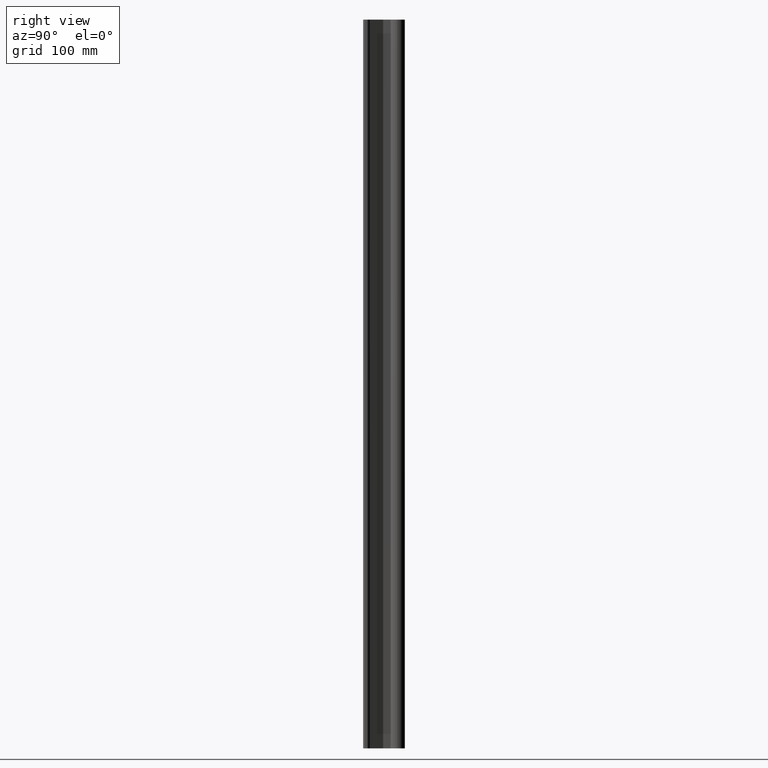
[diagram: clean part render]
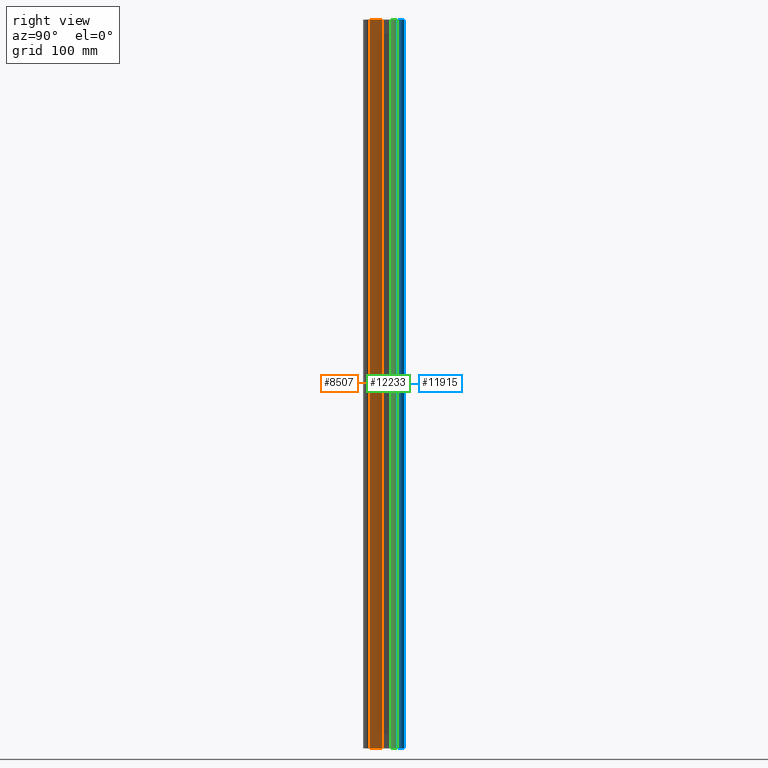
[diagram: same view with three faces highlighted in distinct colors, each labeled with its STEP entity id]
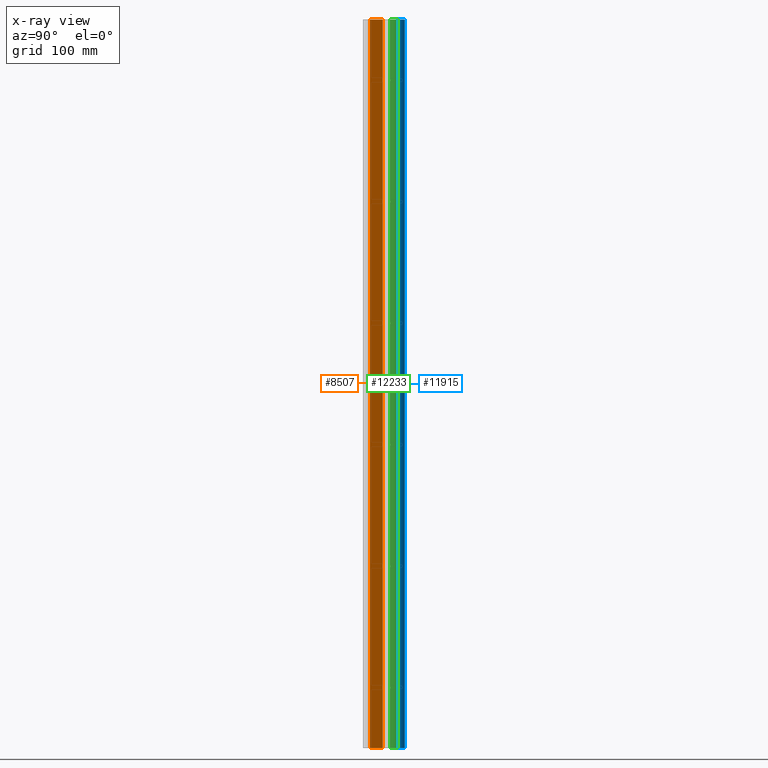
[diagram: x-ray of the same camera — body ghosted, the three highlighted faces saturated]
A machine part, right view with three faces highlighted in distinct colors.
The next image is the same camera in x-ray (body ghosted, the three faces saturated) — at least one of them is partly hidden behind the body in this view.
Their STEP definitions:

[orange] entity #8507 — the highlighted planar face has unit normal (0.9063, 0.4226, 0).
#706 = ORIENTED_EDGE ( 'NONE', *, *, #6439, .F. ) ;
#1805 = VECTOR ( 'NONE', #11694, 39.37007874015748143 ) ;
#2032 = PLANE ( 'NONE',  #12254 ) ;
#2169 = EDGE_CURVE ( 'NONE', #7090, #12223, #11476, .T. ) ;
#2794 = EDGE_LOOP ( 'NONE', ( #706, #12096, #3028, #7269 ) ) ;
#3028 = ORIENTED_EDGE ( 'NONE', *, *, #11531, .F. ) ;
#3038 = DIRECTION ( 'NONE',  ( -0.4226182616904480827, 0.9063077870600825259, 0.000000000000000000 ) ) ;
#3105 = DIRECTION ( 'NONE',  ( 0.9063077870600826369, 0.4226182616904481382, -0.000000000000000000 ) ) ;
#3227 = CARTESIAN_POINT ( 'NONE',  ( 0.1358557633000001819, 0.6467337975999984945, -25.75252057657289129 ) ) ;
#4116 = CARTESIAN_POINT ( 'NONE',  ( 0.1358557633000001819, 0.6467337975999984945, 0.000000000000000000 ) ) ;
#4488 = VERTEX_POINT ( 'NONE', #4116 ) ;
#5328 = VECTOR ( 'NONE', #7254, 39.37007874015748143 ) ;
#5426 = CARTESIAN_POINT ( 'NONE',  ( 0.3338457484000003084, 0.2221429043000001380, -24.00000000000000355 ) ) ;
#5464 = CARTESIAN_POINT ( 'NONE',  ( 0.3338457484000003084, 0.2221429043000001935, -24.00000000000000355 ) ) ;
#5851 = VERTEX_POINT ( 'NONE', #9325 ) ;
#6439 = EDGE_CURVE ( 'NONE', #5851, #7090, #12686, .T. ) ;
#7090 = VERTEX_POINT ( 'NONE', #5464 ) ;
#7254 = DIRECTION ( 'NONE',  ( 0.000000000000000000, 0.000000000000000000, 1.000000000000000000 ) ) ;
#7269 = ORIENTED_EDGE ( 'NONE', *, *, #2169, .F. ) ;
#7888 = CARTESIAN_POINT ( 'NONE',  ( 0.3338457484000003084, 0.2221429043000001380, 0.000000000000000000 ) ) ;
#7965 = LINE ( 'NONE', #7888, #12764 ) ;
#8507 = ADVANCED_FACE ( 'NONE', ( #12270 ), #2032, .T. ) ;
#9325 = CARTESIAN_POINT ( 'NONE',  ( 0.1358557633000001819, 0.6467337975999984945, -24.00000000000000355 ) ) ;
#10415 = VECTOR ( 'NONE', #10503, 39.37007874015748143 ) ;
#10503 = DIRECTION ( 'NONE',  ( 0.000000000000000000, 0.000000000000000000, 1.000000000000000000 ) ) ;
#10956 = DIRECTION ( 'NONE',  ( -0.4226182616904481937, 0.9063077870600825259, 0.000000000000000000 ) ) ;
#11323 = CARTESIAN_POINT ( 'NONE',  ( 0.3338457484000003084, 0.2221429043000001380, -25.75252057657289129 ) ) ;
#11423 = EDGE_CURVE ( 'NONE', #5851, #4488, #11642, .T. ) ;
#11476 = LINE ( 'NONE', #13425, #5328 ) ;
#11531 = EDGE_CURVE ( 'NONE', #12223, #4488, #7965, .T. ) ;
#11642 = LINE ( 'NONE', #3227, #10415 ) ;
#11694 = DIRECTION ( 'NONE',  ( 0.4226182616904480827, -0.9063077870600825259, 0.000000000000000000 ) ) ;
#12096 = ORIENTED_EDGE ( 'NONE', *, *, #11423, .T. ) ;
#12223 = VERTEX_POINT ( 'NONE', #12667 ) ;
#12254 = AXIS2_PLACEMENT_3D ( 'NONE', #11323, #3105, #3038 ) ;
#12270 = FACE_OUTER_BOUND ( 'NONE', #2794, .T. ) ;
#12667 = CARTESIAN_POINT ( 'NONE',  ( 0.3338457484000003084, 0.2221429043000001935, 0.000000000000000000 ) ) ;
#12686 = LINE ( 'NONE', #5426, #1805 ) ;
#12764 = VECTOR ( 'NONE', #10956, 39.37007874015748854 ) ;
#13425 = CARTESIAN_POINT ( 'NONE',  ( 0.3338457484000003084, 0.2221429043000001935, -25.75252057657289129 ) ) ;

[blue] entity #11915 — the highlighted cylindrical surface (edge-blend (fillet) strip) has radius 6.35 mm, axis along (0, 0, 1).
#2001 = DIRECTION ( 'NONE',  ( 1.000000000000000000, 0.000000000000000000, 0.000000000000000000 ) ) ;
#2096 = EDGE_LOOP ( 'NONE', ( #8479, #11686, #4143, #3760 ) ) ;
#2612 = CARTESIAN_POINT ( 'NONE',  ( 0.000000000000000000, 1.125000000000000222, 0.000000000000000000 ) ) ;
#2858 = CARTESIAN_POINT ( 'NONE',  ( -0.2500000000000001110, 1.125000000000000222, -23.99999999999999645 ) ) ;
#3013 = CARTESIAN_POINT ( 'NONE',  ( 0.000000000000000000, 1.125000000000000222, -23.99999999999999645 ) ) ;
#3152 = DIRECTION ( 'NONE',  ( 1.000000000000000000, 0.000000000000000000, 0.000000000000000000 ) ) ;
#3367 = LINE ( 'NONE', #8654, #9490 ) ;
#3390 = VERTEX_POINT ( 'NONE', #2858 ) ;
#3659 = CARTESIAN_POINT ( 'NONE',  ( -0.2500000000000001110, 1.125000000000000222, 0.000000000000000000 ) ) ;
#3760 = ORIENTED_EDGE ( 'NONE', *, *, #5922, .F. ) ;
#4143 = ORIENTED_EDGE ( 'NONE', *, *, #7040, .F. ) ;
#4481 = VERTEX_POINT ( 'NONE', #3659 ) ;
#4662 = DIRECTION ( 'NONE',  ( 1.000000000000000000, 0.000000000000000000, 0.000000000000000000 ) ) ;
#4965 = FACE_OUTER_BOUND ( 'NONE', #2096, .T. ) ;
#5538 = DIRECTION ( 'NONE',  ( 0.000000000000000000, 0.000000000000000000, 1.000000000000000000 ) ) ;
#5922 = EDGE_CURVE ( 'NONE', #10042, #12636, #6999, .T. ) ;
#6259 = CIRCLE ( 'NONE', #11713, 0.2500000000000001110 ) ;
#6293 = DIRECTION ( 'NONE',  ( 0.000000000000000000, 0.000000000000000000, 1.000000000000000000 ) ) ;
#6528 = DIRECTION ( 'NONE',  ( 0.000000000000000000, 0.000000000000000000, 1.000000000000000000 ) ) ;
#6999 = LINE ( 'NONE', #11153, #9640 ) ;
#7040 = EDGE_CURVE ( 'NONE', #12636, #4481, #8088, .T. ) ;
#7154 = CARTESIAN_POINT ( 'NONE',  ( 0.2500000000000001110, 1.125000000000000222, 0.000000000000000000 ) ) ;
#7196 = CYLINDRICAL_SURFACE ( 'NONE', #11077, 0.2500000000000001110 ) ;
#8088 = CIRCLE ( 'NONE', #8738, 0.2500000000000001110 ) ;
#8479 = ORIENTED_EDGE ( 'NONE', *, *, #11738, .T. ) ;
#8654 = CARTESIAN_POINT ( 'NONE',  ( -0.2500000000000001110, 1.125000000000000222, -23.99999999999999645 ) ) ;
#8738 = AXIS2_PLACEMENT_3D ( 'NONE', #2612, #5538, #4662 ) ;
#9113 = DIRECTION ( 'NONE',  ( 0.000000000000000000, 0.000000000000000000, 1.000000000000000000 ) ) ;
#9490 = VECTOR ( 'NONE', #6528, 39.37007874015748143 ) ;
#9640 = VECTOR ( 'NONE', #9113, 39.37007874015748143 ) ;
#10042 = VERTEX_POINT ( 'NONE', #11350 ) ;
#11077 = AXIS2_PLACEMENT_3D ( 'NONE', #3013, #11352, #2001 ) ;
#11153 = CARTESIAN_POINT ( 'NONE',  ( 0.2500000000000001110, 1.125000000000000222, -23.99999999999999645 ) ) ;
#11350 = CARTESIAN_POINT ( 'NONE',  ( 0.2500000000000001110, 1.125000000000000222, -23.99999999999999645 ) ) ;
#11352 = DIRECTION ( 'NONE',  ( 0.000000000000000000, 0.000000000000000000, 1.000000000000000000 ) ) ;
#11686 = ORIENTED_EDGE ( 'NONE', *, *, #13094, .T. ) ;
#11713 = AXIS2_PLACEMENT_3D ( 'NONE', #12505, #6293, #3152 ) ;
#11738 = EDGE_CURVE ( 'NONE', #10042, #3390, #6259, .T. ) ;
#11915 = ADVANCED_FACE ( 'NONE', ( #4965 ), #7196, .T. ) ;
#12505 = CARTESIAN_POINT ( 'NONE',  ( 0.000000000000000000, 1.125000000000000222, -23.99999999999999645 ) ) ;
#12636 = VERTEX_POINT ( 'NONE', #7154 ) ;
#13094 = EDGE_CURVE ( 'NONE', #3390, #4481, #3367, .T. ) ;

[green] entity #12233 — the highlighted cylindrical surface (edge-blend (fillet) strip) has radius 6.35 mm, axis along (0, 0, 1).
#2 = CARTESIAN_POINT ( 'NONE',  ( -0.07748692582057517542, 0.8873092589766966576, -1.989707124409202610 ) ) ;
#55 = FACE_OUTER_BOUND ( 'NONE', #12991, .T. ) ;
#64 = CARTESIAN_POINT ( 'NONE',  ( -4.921704973486029762E-16, 0.8750000000000001110, -22.07799999999999940 ) ) ;
#75 = CARTESIAN_POINT ( 'NONE',  ( -0.04762844379137524953, 0.8795413277969731380, -2.061979185233456136 ) ) ;
#127 = CARTESIAN_POINT ( 'NONE',  ( 0.06806878809041683187, 0.8844097834491140286, -5.960548605632476793 ) ) ;
#135 = CARTESIAN_POINT ( 'NONE',  ( -0.02029898634861083268, 0.8757749623111573678, -2.075485279794390792 ) ) ;
#170 = EDGE_CURVE ( 'NONE', #9888, #8881, #1873, .T. ) ;
#181 = FACE_BOUND ( 'NONE', #7035, .T. ) ;
#192 = CARTESIAN_POINT ( 'NONE',  ( -0.03920491261322306409, 0.8780561055494338074, -1.932378193713816028 ) ) ;
#270 = CARTESIAN_POINT ( 'NONE',  ( -0.07396476811180355271, 0.8861834210205001838, -2.025277900612382886 ) ) ;
#301 = CARTESIAN_POINT ( 'NONE',  ( 0.07800005346680409513, 0.8874794921292501471, -22.00513961688523423 ) ) ;
#317 = CARTESIAN_POINT ( 'NONE',  ( 0.07399339408268747198, 0.8861920631864402820, -1.974792446776128196 ) ) ;
#322 = CARTESIAN_POINT ( 'NONE',  ( -0.06811565724640086805, 0.8844239444435316733, -14.03933565764927849 ) ) ;
#359 = CARTESIAN_POINT ( 'NONE',  ( -3.789845740549149170E-16, 0.8750000000000001110, -14.07799999999999940 ) ) ;
#388 = DIRECTION ( 'NONE',  ( 1.000000000000000000, 0.000000000000000000, 0.000000000000000000 ) ) ;
#429 = CARTESIAN_POINT ( 'NONE',  ( -0.04762844379137702588, 0.8795413277969736932, -22.06197918523345791 ) ) ;
#430 = CARTESIAN_POINT ( 'NONE',  ( 0.05159897899607446964, 0.8803554226899560353, -22.05871202856402391 ) ) ;
#433 = CARTESIAN_POINT ( 'NONE',  ( -0.01028417825572599392, 0.8751612441285564481, -6.077487495701064724 ) ) ;
#452 = CARTESIAN_POINT ( 'NONE',  ( -0.03463712429092664913, 0.8773658347640002075, -13.92992736266218401 ) ) ;
#504 = CARTESIAN_POINT ( 'NONE',  ( -0.02527150068128009366, 0.8762352077965906982, -22.07396928819128235 ) ) ;
#506 = CARTESIAN_POINT ( 'NONE',  ( 0.06811335514283108072, 0.8844231649958608221, -22.03934550995828445 ) ) ;
#538 = CARTESIAN_POINT ( 'NONE',  ( 2.213917706696159326E-15, 0.8750000000000001110, -13.92199999999999882 ) ) ;
#540 = B_SPLINE_CURVE_WITH_KNOTS ( 'NONE', 3,
 ( #720, #2538, #11839, #6657, #504, #10828, #9834, #429, #4564, #3556, #7760, #6736, #10890, #1533, #4647, #2011, #12321, #6164, #13375, #4023, #7273, #8236, #5044, #12439, #4913, #6032, #3081, #3889, #7148, #10370 ),
 .UNSPECIFIED., .F., .F.,
 ( 4, 2, 2, 2, 2, 2, 2, 2, 2, 2, 2, 2, 2, 2, 4 ),
 ( 1.213779246977069146E-17, 0.0003895807297420195723, 0.0007791614594840267846, 0.001168742189226033889, 0.001558322918968041209, 0.002337484378452054333, 0.002727065108194061654, 0.003116645837936068107, 0.003506226567678075862, 0.003895807297420081881, 0.004674968756904094788, 0.005064549486646102543, 0.005454130216388110297, 0.005843710946130117184, 0.006233291675872124071 ),
 .UNSPECIFIED. ) ;
#574 = CARTESIAN_POINT ( 'NONE',  ( 0.07799994652476065216, 0.8874794570102670921, -9.994858760394039976 ) ) ;
#592 = CARTESIAN_POINT ( 'NONE',  ( -0.01028663790876571324, 0.8751606503296344153, -5.922510479102231606 ) ) ;
#598 = CARTESIAN_POINT ( 'NONE',  ( 0.01022138879153923659, 0.8750000000000000000, -17.92200000000000060 ) ) ;
#635 = CARTESIAN_POINT ( 'NONE',  ( -3.789845740549149170E-16, 0.8750000000000001110, -10.07800000000000118 ) ) ;
#649 = CARTESIAN_POINT ( 'NONE',  ( 2.213917706696159326E-15, 0.8750000000000001110, -9.922000000000000597 ) ) ;
#652 = CARTESIAN_POINT ( 'NONE',  ( 0.07549072539660249548, 0.8866677519181026534, -18.02028440669258202 ) ) ;
#691 = CARTESIAN_POINT ( 'NONE',  ( -0.04763339262048742889, 0.8795425248910000438, -17.93802586212072825 ) ) ;
#698 = CARTESIAN_POINT ( 'NONE',  ( 0.06806878809041784495, 0.8844097834491142507, -9.960548605632476793 ) ) ;
#720 = CARTESIAN_POINT ( 'NONE',  ( -4.921704973486029762E-16, 0.8750000000000001110, -22.07799999999999940 ) ) ;
#725 = CARTESIAN_POINT ( 'NONE',  ( 2.213917706696656308E-15, 0.8750000000000001110, -5.921999999999999709 ) ) ;
#730 = CARTESIAN_POINT ( 'NONE',  ( -0.04763339262048741501, 0.8795425248909997107, -9.938025862120726472 ) ) ;
#738 = CARTESIAN_POINT ( 'NONE',  ( -0.02029898634861109982, 0.8757749623111571458, -18.07548527979439257 ) ) ;
#795 = CARTESIAN_POINT ( 'NONE',  ( -0.05153780541582241026, 0.8803421636710380138, -9.941231658580681696 ) ) ;
#797 = CARTESIAN_POINT ( 'NONE',  ( 0.02054169543680400833, 0.8756652858451184906, -13.92406707735932336 ) ) ;
#806 = CARTESIAN_POINT ( 'NONE',  ( -0.07749518699012482303, 0.8873119349522810007, -18.01024377797443066 ) ) ;
#859 = CARTESIAN_POINT ( 'NONE',  ( -0.06811565724640089581, 0.8844239444435320063, -10.03933565764928382 ) ) ;
#925 = CARTESIAN_POINT ( 'NONE',  ( 0.07399339408268794382, 0.8861920631864398379, -13.97479244677612797 ) ) ;
#1017 = EDGE_CURVE ( 'NONE', #4481, #12636, #7182, .T. ) ;
#1040 = CARTESIAN_POINT ( 'NONE',  ( -0.07547983674979560909, 0.8866642819110250873, -2.020328139069968998 ) ) ;
#1176 = CARTESIAN_POINT ( 'NONE',  ( -0.07799757705483373327, 0.8874786788938041626, -2.005160649025025332 ) ) ;
#1236 = VERTEX_POINT ( 'NONE', #359 ) ;
#1237 = ORIENTED_EDGE ( 'NONE', *, *, #170, .T. ) ;
#1283 = CARTESIAN_POINT ( 'NONE',  ( 0.06811335514283047010, 0.8844231649958608221, -6.039345509958289782 ) ) ;
#1323 = CARTESIAN_POINT ( 'NONE',  ( 0.07547573047490969966, 0.8866630057056101855, -21.97966718578037870 ) ) ;
#1334 = DIRECTION ( 'NONE',  ( 0.000000000000000000, 0.000000000000000000, 1.000000000000000000 ) ) ;
#1348 = CARTESIAN_POINT ( 'NONE',  ( -0.02029898634861109982, 0.8757749623111571458, -14.07548527979439079 ) ) ;
#1406 = CARTESIAN_POINT ( 'NONE',  ( 0.05155376896670607612, 0.8803454926763307764, -21.94124525295056216 ) ) ;
#1483 = CARTESIAN_POINT ( 'NONE',  ( 0.06806878809041724820, 0.8844097834491138066, -1.960548605632476571 ) ) ;
#1519 = EDGE_CURVE ( 'NONE', #11571, #5895, #9522, .T. ) ;
#1533 = CARTESIAN_POINT ( 'NONE',  ( -0.07749518699012483691, 0.8873119349522811117, -22.01024377797443066 ) ) ;
#1535 = CARTESIAN_POINT ( 'NONE',  ( -0.07396476811180345556, 0.8861834210205001838, -6.025277900612383775 ) ) ;
#1552 = CARTESIAN_POINT ( 'NONE',  ( -0.03920491261322270327, 0.8780561055494338074, -13.93237819371381470 ) ) ;
#1588 = CARTESIAN_POINT ( 'NONE',  ( 0.07397325310812996602, 0.8861860169568034351, -10.02525534399436324 ) ) ;
#1616 = CARTESIAN_POINT ( 'NONE',  ( -0.07800240562820985601, 0.8874802645617221319, -5.994912855319885381 ) ) ;
#1621 = CARTESIAN_POINT ( 'NONE',  ( -0.04762844379137554790, 0.8795413277969735821, -10.06197918523345969 ) ) ;
#1624 = AXIS2_PLACEMENT_3D ( 'NONE', #7845, #1334, #8786 ) ;
#1629 = CARTESIAN_POINT ( 'NONE',  ( 0.07799994652476065216, 0.8874794570102670921, -17.99485876039403465 ) ) ;
#1642 = CARTESIAN_POINT ( 'NONE',  ( -0.04763339262048742889, 0.8795425248910000438, -13.93802586212073003 ) ) ;
#1670 = CARTESIAN_POINT ( 'NONE',  ( 0.07749688441172671027, 0.8873125097882689216, -10.01022446488824613 ) ) ;
#1688 = CARTESIAN_POINT ( 'NONE',  ( -0.06807901061803971199, 0.8844127860630973670, -5.960569573522794151 ) ) ;
#1690 = CARTESIAN_POINT ( 'NONE',  ( -0.02037021677938411282, 0.8757800773783558368, -9.924531496392255292 ) ) ;
#1697 = CARTESIAN_POINT ( 'NONE',  ( 0.06806878809041784495, 0.8844097834491142507, -17.96054860563247857 ) ) ;
#1700 = CARTESIAN_POINT ( 'NONE',  ( -0.07748692582057496725, 0.8873092589766966576, -17.98970712440920394 ) ) ;
#1710 = CARTESIAN_POINT ( 'NONE',  ( -0.01028663790876568028, 0.8751606503296343043, -13.92251047910223072 ) ) ;
#1738 = EDGE_CURVE ( 'NONE', #10416, #8764, #6226, .T. ) ;
#1754 = CARTESIAN_POINT ( 'NONE',  ( -0.03470459755099555843, 0.8773749578586349518, -6.070040668550720220 ) ) ;
#1764 = CARTESIAN_POINT ( 'NONE',  ( -0.06232975070473038143, 0.8827823061085769973, -17.95201609084168837 ) ) ;
#1833 = CARTESIAN_POINT ( 'NONE',  ( 0.04764718445361525861, 0.8795451681264810917, -17.93803623016414406 ) ) ;
#1837 = CARTESIAN_POINT ( 'NONE',  ( -0.04762844379137556178, 0.8795413277969735821, -18.06197918523345436 ) ) ;
#1873 = B_SPLINE_CURVE_WITH_KNOTS ( 'NONE', 3,
 ( #2823, #6034, #8178, #3694, #10195, #1899, #3895, #1621, #5820, #10973, #859, #10256, #10118, #4981, #7979, #11042, #10041, #5887, #13309, #9977, #11105, #795, #730, #4916, #7016, #8094, #1690, #2760, #9130, #649 ),
 .UNSPECIFIED., .F., .F.,
 ( 4, 2, 2, 2, 2, 2, 2, 2, 2, 2, 2, 2, 2, 2, 4 ),
 ( 9.346427983603432115E-18, 0.0003895807297418959732, 0.0007791614594837826223, 0.001168742189225668946, 0.001558322918967555270, 0.002337484378451445879, 0.002727065108193467511, 0.003116645837935489143, 0.003506226567677510342, 0.003895807297419531974, 0.004674968756903726159, 0.005064549486645823252, 0.005454130216387922080, 0.005843710946130019172, 0.006233291675872117132 ),
 .UNSPECIFIED. ) ;
#1896 = CARTESIAN_POINT ( 'NONE',  ( 2.213917706696159326E-15, 0.8750000000000001110, -17.92200000000000060 ) ) ;
#1899 = CARTESIAN_POINT ( 'NONE',  ( -0.03470459755099534332, 0.8773749578586351738, -10.07004066855072111 ) ) ;
#1901 = CARTESIAN_POINT ( 'NONE',  ( 0.01028783097141220543, 0.8751612583494136066, -14.07748747400647105 ) ) ;
#1956 = EDGE_CURVE ( 'NONE', #8881, #9888, #3276, .T. ) ;
#2011 = CARTESIAN_POINT ( 'NONE',  ( -0.07800240562820992540, 0.8874802645617223540, -21.99491285531988538 ) ) ;
#2019 = CARTESIAN_POINT ( 'NONE',  ( 0.07549072539660249548, 0.8866677519181026534, -14.02028440669258558 ) ) ;
#2063 = FACE_BOUND ( 'NONE', #6249, .T. ) ;
#2077 = CARTESIAN_POINT ( 'NONE',  ( -0.07749518699012483691, 0.8873119349522805566, -2.010243777974426216 ) ) ;
#2131 = CARTESIAN_POINT ( 'NONE',  ( 0.03917239722044438960, 0.8780507865503899279, -6.067641377104353140 ) ) ;
#2187 = CARTESIAN_POINT ( 'NONE',  ( 0.07800005346680394247, 0.8874794921292507022, -6.005139616885249332 ) ) ;
#2202 = CARTESIAN_POINT ( 'NONE',  ( -0.01028417825572579443, 0.8751612441285568922, -2.077487495701067832 ) ) ;
#2230 = B_SPLINE_CURVE_WITH_KNOTS ( 'NONE', 3,
 ( #4854, #598, #8925, #6951, #13054, #1833, #13251, #4658, #1697, #3778, #5824, #13124, #1629, #3902, #10046, #652, #5894, #8862, #10124, #7908, #11993, #9068, #13191, #3849, #6541, #10715, #2609, #6814 ),
 .UNSPECIFIED., .F., .F.,
 ( 4, 2, 2, 2, 2, 2, 2, 2, 2, 2, 2, 2, 2, 4 ),
 ( 0.006233291675872117132, 0.007012246077378814051, 0.007401723278132194168, 0.007791200478885573419, 0.008570154880392333654, 0.008959632081145637444, 0.009349109281898942969, 0.009738586482652245024, 0.01012806368340555055, 0.01090701808491216160, 0.01129649528566546539, 0.01168597248641876918, 0.01207544968717207470, 0.01246492688792537676 ),
 .UNSPECIFIED. ) ;
#2246 = DIRECTION ( 'NONE',  ( 1.000000000000000000, 0.000000000000000000, 0.000000000000000000 ) ) ;
#2247 = FACE_BOUND ( 'NONE', #7353, .T. ) ;
#2249 = CARTESIAN_POINT ( 'NONE',  ( 0.03465069891692593163, 0.8773676731561542708, -5.929933805850380324 ) ) ;
#2264 = CARTESIAN_POINT ( 'NONE',  ( -0.03470459755099533639, 0.8773749578586351738, -2.070040668550719332 ) ) ;
#2292 = CARTESIAN_POINT ( 'NONE',  ( 0.02031614091366408525, 0.8757762236181683146, -22.07548114011047247 ) ) ;
#2308 = DIRECTION ( 'NONE',  ( 0.000000000000000000, 0.000000000000000000, 1.000000000000000000 ) ) ;
#2309 = FACE_BOUND ( 'NONE', #12404, .T. ) ;
#2333 = CARTESIAN_POINT ( 'NONE',  ( 0.01022138879153923832, 0.8750000000000001110, -9.922000000000000597 ) ) ;
#2349 = CARTESIAN_POINT ( 'NONE',  ( 2.213917706804984660E-15, 0.8750000000000001110, -21.92199999999999704 ) ) ;
#2360 = CARTESIAN_POINT ( 'NONE',  ( 0.03471035892563603675, 0.8773759459724903564, -2.070037104886759849 ) ) ;
#2407 = CARTESIAN_POINT ( 'NONE',  ( 0.02054169543680528509, 0.8756652858451183796, -21.92406707735932159 ) ) ;
#2422 = CARTESIAN_POINT ( 'NONE',  ( 0.03921498086539830508, 0.8780576707971252670, -1.932383816771763296 ) ) ;
#2499 = CARTESIAN_POINT ( 'NONE',  ( -0.07748692582057496725, 0.8873092589766966576, -13.98970712440920039 ) ) ;
#2538 = CARTESIAN_POINT ( 'NONE',  ( -0.005188565316905643238, 0.8750000000000003331, -22.07799999999999940 ) ) ;
#2600 = CARTESIAN_POINT ( 'NONE',  ( -0.04762844379137548545, 0.8795413277969731380, -6.061979185233457024 ) ) ;
#2609 = CARTESIAN_POINT ( 'NONE',  ( 0.005187186483511317669, 0.8750000000000003331, -18.07800000000000296 ) ) ;
#2643 = CARTESIAN_POINT ( 'NONE',  ( -0.005112052896395337907, 0.8750000000000001110, -17.92199999999999704 ) ) ;
#2655 = CARTESIAN_POINT ( 'NONE',  ( 0.03921498086539857569, 0.8780576707971254891, -9.932383816771762852 ) ) ;
#2682 = CARTESIAN_POINT ( 'NONE',  ( 3.229941627515405156E-16, 0.8750000000000001110, -6.077999999999998515 ) ) ;
#2760 = CARTESIAN_POINT ( 'NONE',  ( -0.01028663790876567161, 0.8751606503296343043, -9.922510479102232495 ) ) ;
#2769 = CARTESIAN_POINT ( 'NONE',  ( -0.07547898097189637001, 0.8866640281602993223, -17.97967537472681343 ) ) ;
#2803 = CARTESIAN_POINT ( 'NONE',  ( 0.02031614091366380423, 0.8757762236181686477, -10.07548114011046891 ) ) ;
#2823 = CARTESIAN_POINT ( 'NONE',  ( -3.789845740549149170E-16, 0.8750000000000001110, -10.07800000000000118 ) ) ;
#2834 = CARTESIAN_POINT ( 'NONE',  ( -3.789845740549149170E-16, 0.8750000000000001110, -18.07799999999999940 ) ) ;
#2858 = CARTESIAN_POINT ( 'NONE',  ( -0.2500000000000001110, 1.125000000000000222, -23.99999999999999645 ) ) ;
#2943 = EDGE_CURVE ( 'NONE', #8764, #10416, #540, .T. ) ;
#2972 = CARTESIAN_POINT ( 'NONE',  ( 0.05159897899607263083, 0.8803554226899555912, -14.05871202856403102 ) ) ;
#3081 = CARTESIAN_POINT ( 'NONE',  ( -0.02037021677938372077, 0.8757800773783559478, -21.92453149639225529 ) ) ;
#3091 = CARTESIAN_POINT ( 'NONE',  ( 0.02031614091366382852, 0.8757762236181689808, -14.07548114011047247 ) ) ;
#3136 = CARTESIAN_POINT ( 'NONE',  ( 0.03471035892563602288, 0.8773759459724902454, -6.070037104886758961 ) ) ;
#3150 = CARTESIAN_POINT ( 'NONE',  ( -0.05160429883667128070, 0.8803565653948266512, -2.058707218946969952 ) ) ;
#3253 = CARTESIAN_POINT ( 'NONE',  ( 0.04764718445361500188, 0.8795451681264805366, -5.938036230164141394 ) ) ;
#3276 = B_SPLINE_CURVE_WITH_KNOTS ( 'NONE', 3,
 ( #6441, #2333, #5580, #9679, #2655, #6860, #11021, #6782, #698, #12171, #4824, #5728, #574, #10942, #1670, #9038, #1588, #3675, #6719, #5798, #13167, #3746, #10023, #12232, #2803, #5943, #9958, #635 ),
 .UNSPECIFIED., .F., .F.,
 ( 4, 2, 2, 2, 2, 2, 2, 2, 2, 2, 2, 2, 2, 4 ),
 ( 0.006233291675872117132, 0.007012246077378821857, 0.007401723278132142994, 0.007791200478885464131, 0.008570154880391990179, 0.008959632081145328664, 0.009349109281898667148, 0.009738586482652005633, 0.01012806368340534412, 0.01090701808491202282, 0.01129649528566535957, 0.01168597248641869979, 0.01207544968717203654, 0.01246492688792537676 ),
 .UNSPECIFIED. ) ;
#3367 = LINE ( 'NONE', #8654, #9490 ) ;
#3371 = CARTESIAN_POINT ( 'NONE',  ( 0.05159897899607228389, 0.8803554226899555912, -2.058712028564029684 ) ) ;
#3378 = DIRECTION ( 'NONE',  ( 0.000000000000000000, 0.000000000000000000, 1.000000000000000000 ) ) ;
#3380 = CARTESIAN_POINT ( 'NONE',  ( 2.213917706696656308E-15, 0.8750000000000001110, -5.921999999999999709 ) ) ;
#3390 = VERTEX_POINT ( 'NONE', #2858 ) ;
#3424 = CARTESIAN_POINT ( 'NONE',  ( 0.005187186483511348027, 0.8750000000000001110, -22.07800000000000296 ) ) ;
#3437 = CARTESIAN_POINT ( 'NONE',  ( 0.02054169543680450447, 0.8756652858451183796, -1.924067077359322031 ) ) ;
#3499 = CARTESIAN_POINT ( 'NONE',  ( -0.07547898097189637001, 0.8866640281602993223, -13.97967537472681876 ) ) ;
#3556 = CARTESIAN_POINT ( 'NONE',  ( -0.06232079077688824909, 0.8827815571590309496, -22.04798212059289497 ) ) ;
#3557 = CARTESIAN_POINT ( 'NONE',  ( -4.921704973486029762E-16, 0.8750000000000001110, -22.07799999999999940 ) ) ;
#3567 = EDGE_CURVE ( 'NONE', #10375, #5411, #5602, .T. ) ;
#3576 = CARTESIAN_POINT ( 'NONE',  ( 0.04764718445361500188, 0.8795451681264805366, -1.938036230164141616 ) ) ;
#3607 = VERTEX_POINT ( 'NONE', #1896 ) ;
#3659 = CARTESIAN_POINT ( 'NONE',  ( -0.2500000000000001110, 1.125000000000000222, 0.000000000000000000 ) ) ;
#3668 = CARTESIAN_POINT ( 'NONE',  ( -0.02037021677938412670, 0.8757800773783560588, -17.92453149639225884 ) ) ;
#3675 = CARTESIAN_POINT ( 'NONE',  ( 0.06811335514283006765, 0.8844231649958609331, -10.03934550995829156 ) ) ;
#3694 = CARTESIAN_POINT ( 'NONE',  ( -0.02029898634861109635, 0.8757749623111567017, -10.07548527979438724 ) ) ;
#3746 = CARTESIAN_POINT ( 'NONE',  ( 0.03917239722044452838, 0.8780507865503895948, -10.06764137710435314 ) ) ;
#3778 = CARTESIAN_POINT ( 'NONE',  ( 0.07399339408268794382, 0.8861920631864398379, -17.97479244677612797 ) ) ;
#3781 = CARTESIAN_POINT ( 'NONE',  ( -0.03917314466049455490, 0.8780508288026275254, -18.06764135419696871 ) ) ;
#3788 = CARTESIAN_POINT ( 'NONE',  ( -0.07799757705483378878, 0.8874786788938043847, -14.00516064902502578 ) ) ;
#3845 = CARTESIAN_POINT ( 'NONE',  ( 0.06811335514283005377, 0.8844231649958610442, -14.03934550995828978 ) ) ;
#3849 = CARTESIAN_POINT ( 'NONE',  ( 0.02529603958554936527, 0.8762378816398045389, -18.07396022890007714 ) ) ;
#3853 = CARTESIAN_POINT ( 'NONE',  ( -0.005188565316905642370, 0.8750000000000002220, -18.07799999999999940 ) ) ;
#3856 = CARTESIAN_POINT ( 'NONE',  ( 3.122475928760415725E-17, 0.8750000000000001110, -2.078000000000000291 ) ) ;
#3889 = CARTESIAN_POINT ( 'NONE',  ( -0.01028663790876502802, 0.8751606503296346373, -21.92251047910223249 ) ) ;
#3895 = CARTESIAN_POINT ( 'NONE',  ( -0.03917314466049455490, 0.8780508288026276364, -10.06764135419696871 ) ) ;
#3902 = CARTESIAN_POINT ( 'NONE',  ( 0.07800005346680394247, 0.8874794921292503691, -18.00513961688525910 ) ) ;
#3965 = CARTESIAN_POINT ( 'NONE',  ( 0.01022138879153923659, 0.8750000000000000000, -13.92199999999999882 ) ) ;
#4023 = CARTESIAN_POINT ( 'NONE',  ( -0.06807901061803904585, 0.8844127860630971449, -21.96056957352278616 ) ) ;
#4036 = ORIENTED_EDGE ( 'NONE', *, *, #6069, .T. ) ;
#4088 = AXIS2_PLACEMENT_3D ( 'NONE', #8598, #2308, #2246 ) ;
#4135 = B_SPLINE_CURVE_WITH_KNOTS ( 'NONE', 3,
 ( #5234, #5423, #2202, #135, #9666, #2264, #11418, #75, #3150, #4218, #11551, #270, #1040, #2077, #1176, #6426, #2, #9593, #12568, #10619, #5366, #7331, #12680, #192, #6356, #6222, #10419, #8414, #10553, #5173 ),
 .UNSPECIFIED., .F., .F.,
 ( 4, 2, 2, 2, 2, 2, 2, 2, 2, 2, 2, 2, 2, 2, 4 ),
 ( 7.700576328593837695E-19, 0.0003895807297420085676, 0.0007791614594840163763, 0.001168742189226024348, 0.001558322918968032102, 0.002337484378452031782, 0.002727065108194041704, 0.003116645837936051627, 0.003506226567678061550, 0.003895807297420071039, 0.004674968756904090451, 0.005064549486646099073, 0.005454130216388106828, 0.005843710946130115449, 0.006233291675872123204 ),
 .UNSPECIFIED. ) ;
#4218 = CARTESIAN_POINT ( 'NONE',  ( -0.06232079077688747887, 0.8827815571590306165, -2.047982120592901190 ) ) ;
#4266 = CARTESIAN_POINT ( 'NONE',  ( 0.07399339408268720830, 0.8861920631864401710, -5.974792446776127974 ) ) ;
#4369 = CARTESIAN_POINT ( 'NONE',  ( 0.07549072539660189873, 0.8866677519181023204, -22.02028440669258202 ) ) ;
#4387 = CARTESIAN_POINT ( 'NONE',  ( 0.07549072539660242609, 0.8866677519181028755, -2.020284406692587353 ) ) ;
#4439 = CARTESIAN_POINT ( 'NONE',  ( 0.06806878809041690126, 0.8844097834491140286, -21.96054860563248212 ) ) ;
#4450 = CARTESIAN_POINT ( 'NONE',  ( 0.06811335514283053949, 0.8844231649958609331, -2.039345509958290226 ) ) ;
#4453 = CARTESIAN_POINT ( 'NONE',  ( -0.07396476811180423272, 0.8861834210205004059, -14.02527790061238555 ) ) ;
#4481 = VERTEX_POINT ( 'NONE', #3659 ) ;
#4493 = AXIS2_PLACEMENT_3D ( 'NONE', #12012, #3378, #388 ) ;
#4564 = CARTESIAN_POINT ( 'NONE',  ( -0.05160429883667220358, 0.8803565653948269842, -22.05870721894696729 ) ) ;
#4565 = CARTESIAN_POINT ( 'NONE',  ( 0.02529603958554714829, 0.8762378816398040948, -22.07396022890008425 ) ) ;
#4567 = CARTESIAN_POINT ( 'NONE',  ( -0.07547898097189705002, 0.8866640281602997664, -5.979675374726825865 ) ) ;
#4647 = CARTESIAN_POINT ( 'NONE',  ( -0.07799757705483363612, 0.8874786788938041626, -22.00516064902502578 ) ) ;
#4650 = CARTESIAN_POINT ( 'NONE',  ( -0.005188565316905569512, 0.8750000000000001110, -6.077999999999996739 ) ) ;
#4658 = CARTESIAN_POINT ( 'NONE',  ( 0.06235218895622908486, 0.8827879426489956272, -17.95204324745742852 ) ) ;
#4664 = CARTESIAN_POINT ( 'NONE',  ( 0.07799994652476058277, 0.8874794570102669811, -1.994858760394038644 ) ) ;
#4680 = CARTESIAN_POINT ( 'NONE',  ( 2.213917706696159326E-15, 0.8750000000000001110, -9.922000000000000597 ) ) ;
#4776 = CARTESIAN_POINT ( 'NONE',  ( -0.07399434787557189475, 0.8861923864663601158, -5.974796547117605883 ) ) ;
#4824 = CARTESIAN_POINT ( 'NONE',  ( 0.07547573047490928333, 0.8866630057056101855, -9.979667185780376926 ) ) ;
#4854 = CARTESIAN_POINT ( 'NONE',  ( 2.213917706696159326E-15, 0.8750000000000001110, -17.92200000000000060 ) ) ;
#4913 = CARTESIAN_POINT ( 'NONE',  ( -0.03463712429092632994, 0.8773658347640002075, -21.92992736266219111 ) ) ;
#4916 = CARTESIAN_POINT ( 'NONE',  ( -0.03920491261322269633, 0.8780561055494339184, -9.932378193713816472 ) ) ;
#4968 = CARTESIAN_POINT ( 'NONE',  ( 3.122475928760415725E-17, 0.8750000000000001110, -2.078000000000000291 ) ) ;
#4981 = CARTESIAN_POINT ( 'NONE',  ( -0.07749518699012480916, 0.8873119349522807786, -10.01024377797442533 ) ) ;
#5044 = CARTESIAN_POINT ( 'NONE',  ( -0.04763339262048969791, 0.8795425248910007099, -21.93802586212072825 ) ) ;
#5120 = CARTESIAN_POINT ( 'NONE',  ( 0.05155376896670632592, 0.8803454926763307764, -13.94124525295055861 ) ) ;
#5141 = ORIENTED_EDGE ( 'NONE', *, *, #1956, .T. ) ;
#5173 = CARTESIAN_POINT ( 'NONE',  ( 2.213917706723986788E-15, 0.8750000000000001110, -1.921999999999999931 ) ) ;
#5224 = CARTESIAN_POINT ( 'NONE',  ( 0.05155376896670560427, 0.8803454926763303323, -5.941245252950559497 ) ) ;
#5234 = CARTESIAN_POINT ( 'NONE',  ( 3.122475928760415725E-17, 0.8750000000000001110, -2.078000000000000291 ) ) ;
#5288 = CARTESIAN_POINT ( 'NONE',  ( -0.03470459755099534332, 0.8773749578586350628, -14.07004066855071756 ) ) ;
#5297 = CARTESIAN_POINT ( 'NONE',  ( 0.02054169543680443508, 0.8756652858451180466, -5.924067077359320699 ) ) ;
#5365 = VERTEX_POINT ( 'NONE', #9503 ) ;
#5366 = CARTESIAN_POINT ( 'NONE',  ( -0.06232975070473011081, 0.8827823061085769973, -1.952016090841690144 ) ) ;
#5402 = CARTESIAN_POINT ( 'NONE',  ( 0.03465069891692603571, 0.8773676731561540487, -1.929933805850380102 ) ) ;
#5411 = VERTEX_POINT ( 'NONE', #11330 ) ;
#5423 = CARTESIAN_POINT ( 'NONE',  ( -0.005188565316905607676, 0.8750000000000003331, -2.078000000000000291 ) ) ;
#5448 = CARTESIAN_POINT ( 'NONE',  ( 0.07748070542580094699, 0.8873072381692586053, -21.98966803447879670 ) ) ;
#5468 = CARTESIAN_POINT ( 'NONE',  ( 0.01022138879153921751, 0.8750000000000003331, -1.922000000000000153 ) ) ;
#5524 = CARTESIAN_POINT ( 'NONE',  ( 0.06235218895622878649, 0.8827879426489952941, -21.95204324745742497 ) ) ;
#5546 = ORIENTED_EDGE ( 'NONE', *, *, #11945, .T. ) ;
#5580 = CARTESIAN_POINT ( 'NONE',  ( 0.02054169543680401527, 0.8756652858451183796, -9.924067077359323363 ) ) ;
#5602 = B_SPLINE_CURVE_WITH_KNOTS ( 'NONE', 3,
 ( #2682, #4650, #433, #8855, #11104, #1754, #5883, #2600, #7836, #9975, #11040, #1535, #10115, #11162, #5817, #1616, #12987, #4567, #4776, #1688, #9062, #5666, #12057, #10970, #11988, #7763, #6806, #592, #13183, #725 ),
 .UNSPECIFIED., .F., .F.,
 ( 4, 2, 2, 2, 2, 2, 2, 2, 2, 2, 2, 2, 2, 2, 4 ),
 ( 7.965605694664002201E-18, 0.0003895807297420045019, 0.0007791614594840008722, 0.001168742189225997459, 0.001558322918967993721, 0.002337484378451929867, 0.002727065108193936320, 0.003116645837935943641, 0.003506226567677950094, 0.003895807297419957415, 0.004674968756903969888, 0.005064549486646006266, 0.005454130216388042643, 0.005843710946130079020, 0.006233291675872114530 ),
 .UNSPECIFIED. ) ;
#5666 = CARTESIAN_POINT ( 'NONE',  ( -0.05153780541582144575, 0.8803421636710382359, -5.941231658580681696 ) ) ;
#5687 = CARTESIAN_POINT ( 'NONE',  ( -0.005112052896395337907, 0.8750000000000001110, -13.92199999999999704 ) ) ;
#5719 = CARTESIAN_POINT ( 'NONE',  ( -0.03920491261322270327, 0.8780561055494338074, -17.93237819371382002 ) ) ;
#5728 = CARTESIAN_POINT ( 'NONE',  ( 0.07748070542580053066, 0.8873072381692586053, -9.989668034478798475 ) ) ;
#5764 = B_SPLINE_CURVE_WITH_KNOTS ( 'NONE', 3,
 ( #2834, #3853, #10127, #738, #8992, #11052, #3781, #1837, #9070, #11177, #5975, #7985, #10206, #806, #12139, #12267, #1700, #2769, #6955, #11114, #1764, #5897, #691, #5719, #9100, #10869, #3668, #6711, #2643, #9031 ),
 .UNSPECIFIED., .F., .F.,
 ( 4, 2, 2, 2, 2, 2, 2, 2, 2, 2, 2, 2, 2, 2, 4 ),
 ( 9.346427983603432115E-18, 0.0003895807297420916717, 0.0007791614594841740193, 0.001168742189226255933, 0.001558322918968337847, 0.002337484378452504060, 0.002727065108194510080, 0.003116645837936516533, 0.003506226567678523420, 0.003895807297420529440, 0.004674968756904391426, 0.005064549486646322853, 0.005454130216388254279, 0.005843710946130185706, 0.006233291675872117132 ),
 .UNSPECIFIED. ) ;
#5773 = CARTESIAN_POINT ( 'NONE',  ( -0.05153780541582243108, 0.8803421636710380138, -13.94123165858068347 ) ) ;
#5798 = CARTESIAN_POINT ( 'NONE',  ( 0.05159897899607262389, 0.8803554226899557023, -10.05871202856402924 ) ) ;
#5817 = CARTESIAN_POINT ( 'NONE',  ( -0.07799757705483373327, 0.8874786788938041626, -6.005160649025024000 ) ) ;
#5820 = CARTESIAN_POINT ( 'NONE',  ( -0.05160429883667063539, 0.8803565653948267622, -10.05870721894697084 ) ) ;
#5824 = CARTESIAN_POINT ( 'NONE',  ( 0.07547573047490926945, 0.8866630057056100744, -17.97966718578037515 ) ) ;
#5883 = CARTESIAN_POINT ( 'NONE',  ( -0.03917314466049437449, 0.8780508288026275254, -6.067641354196963377 ) ) ;
#5887 = CARTESIAN_POINT ( 'NONE',  ( -0.07547898097189638389, 0.8866640281602995444, -9.979675374726822312 ) ) ;
#5894 = CARTESIAN_POINT ( 'NONE',  ( 0.07397325310812995214, 0.8861860169568034351, -18.02525534399436324 ) ) ;
#5895 = VERTEX_POINT ( 'NONE', #4968 ) ;
#5897 = CARTESIAN_POINT ( 'NONE',  ( -0.05153780541582243108, 0.8803421636710380138, -17.94123165858068347 ) ) ;
#5922 = EDGE_CURVE ( 'NONE', #10042, #12636, #6999, .T. ) ;
#5943 = CARTESIAN_POINT ( 'NONE',  ( 0.01028783097141219849, 0.8751612583494137176, -10.07748747400647460 ) ) ;
#5968 = CARTESIAN_POINT ( 'NONE',  ( 0.07547573047490926945, 0.8866630057056100744, -13.97966718578037337 ) ) ;
#5975 = CARTESIAN_POINT ( 'NONE',  ( -0.06811565724640086805, 0.8844239444435316733, -18.03933565764927494 ) ) ;
#6032 = CARTESIAN_POINT ( 'NONE',  ( -0.02523737676778966751, 0.8762320660029586650, -21.92602041027078386 ) ) ;
#6034 = CARTESIAN_POINT ( 'NONE',  ( -0.005188565316905644105, 0.8750000000000001110, -10.07800000000000473 ) ) ;
#6069 = EDGE_CURVE ( 'NONE', #5411, #10375, #11345, .T. ) ;
#6090 = EDGE_CURVE ( 'NONE', #3607, #5365, #2230, .T. ) ;
#6164 = CARTESIAN_POINT ( 'NONE',  ( -0.07547898097189699451, 0.8866640281602995444, -21.97967537472682409 ) ) ;
#6208 = CARTESIAN_POINT ( 'NONE',  ( 3.229941627515405156E-16, 0.8750000000000001110, -6.077999999999998515 ) ) ;
#6222 = CARTESIAN_POINT ( 'NONE',  ( -0.02523737676779040998, 0.8762320660029592201, -1.926020410270788297 ) ) ;
#6226 = B_SPLINE_CURVE_WITH_KNOTS ( 'NONE', 3,
 ( #2349, #9905, #2407, #6585, #11840, #7491, #1406, #5524, #4439, #6516, #1323, #5448, #9835, #301, #12917, #4369, #6658, #506, #9701, #430, #8646, #11651, #12777, #4565, #2292, #8769, #3424, #3557 ),
 .UNSPECIFIED., .F., .F.,
 ( 4, 2, 2, 2, 2, 2, 2, 2, 2, 2, 2, 2, 2, 4 ),
 ( 0.006233291675872124071, 0.007012246077378710835, 0.007401723278132004216, 0.007791200478885297598, 0.008570154880391653643, 0.008959632081144981719, 0.009349109281898311530, 0.009738586482651639606, 0.01012806368340496768, 0.01090701808491193088, 0.01129649528566529712, 0.01168597248641866163, 0.01207544968717202960, 0.01246492688792539411 ),
 .UNSPECIFIED. ) ;
#6249 = EDGE_LOOP ( 'NONE', ( #11235, #12823 ) ) ;
#6338 = CARTESIAN_POINT ( 'NONE',  ( 0.005187186483511224862, 0.8750000000000000000, -6.077999999999997627 ) ) ;
#6356 = CARTESIAN_POINT ( 'NONE',  ( -0.03463712429092701689, 0.8773658347640002075, -1.929927362662186008 ) ) ;
#6414 = CARTESIAN_POINT ( 'NONE',  ( 0.07799994652476063828, 0.8874794570102670921, -5.994858760394039976 ) ) ;
#6426 = CARTESIAN_POINT ( 'NONE',  ( -0.07800240562820986989, 0.8874802645617220209, -1.994912855319884493 ) ) ;
#6441 = CARTESIAN_POINT ( 'NONE',  ( 2.213917706696159326E-15, 0.8750000000000001110, -9.922000000000000597 ) ) ;
#6476 = CARTESIAN_POINT ( 'NONE',  ( 0.02031614091366462649, 0.8757762236181687587, -6.075481140110469802 ) ) ;
#6516 = CARTESIAN_POINT ( 'NONE',  ( 0.07399339408268708340, 0.8861920631864399489, -21.97479244677612797 ) ) ;
#6528 = DIRECTION ( 'NONE',  ( 0.000000000000000000, 0.000000000000000000, 1.000000000000000000 ) ) ;
#6541 = CARTESIAN_POINT ( 'NONE',  ( 0.02031614091366382852, 0.8757762236181689808, -18.07548114011047247 ) ) ;
#6579 = ORIENTED_EDGE ( 'NONE', *, *, #7140, .T. ) ;
#6585 = CARTESIAN_POINT ( 'NONE',  ( 0.03465069891692666715, 0.8773676731561543818, -21.92993380585037499 ) ) ;
#6657 = CARTESIAN_POINT ( 'NONE',  ( -0.02029898634861087084, 0.8757749623111571458, -22.07548527979438546 ) ) ;
#6658 = CARTESIAN_POINT ( 'NONE',  ( 0.07397325310813056276, 0.8861860169568039902, -22.02525534399436324 ) ) ;
#6711 = CARTESIAN_POINT ( 'NONE',  ( -0.01028663790876568028, 0.8751606503296343043, -17.92251047910222894 ) ) ;
#6719 = CARTESIAN_POINT ( 'NONE',  ( 0.06231953888075484477, 0.8827811517732780944, -10.04798440163065187 ) ) ;
#6736 = CARTESIAN_POINT ( 'NONE',  ( -0.07396476811180348332, 0.8861834210205001838, -22.02527790061238022 ) ) ;
#6782 = CARTESIAN_POINT ( 'NONE',  ( 0.06235218895622909180, 0.8827879426489958492, -9.952043247457423192 ) ) ;
#6806 = CARTESIAN_POINT ( 'NONE',  ( -0.02037021677938419956, 0.8757800773783561699, -5.924531496392253516 ) ) ;
#6814 = CARTESIAN_POINT ( 'NONE',  ( -3.789845740549149170E-16, 0.8750000000000001110, -18.07799999999999940 ) ) ;
#6847 = B_SPLINE_CURVE_WITH_KNOTS ( 'NONE', 3,
 ( #10258, #3965, #797, #8240, #7018, #7211, #5120, #7151, #9339, #925, #5968, #9065, #11249, #13189, #8180, #2019, #8097, #3845, #7284, #2972, #12445, #13381, #10377, #11170, #3091, #1901, #10197, #13247 ),
 .UNSPECIFIED., .F., .F.,
 ( 4, 2, 2, 2, 2, 2, 2, 2, 2, 2, 2, 2, 2, 4 ),
 ( 0.006233291675872117132, 0.007012246077378814051, 0.007401723278132194168, 0.007791200478885573419, 0.008570154880392333654, 0.008959632081145637444, 0.009349109281898942969, 0.009738586482652245024, 0.01012806368340555055, 0.01090701808491216160, 0.01129649528566546539, 0.01168597248641876918, 0.01207544968717207470, 0.01246492688792537676 ),
 .UNSPECIFIED. ) ;
#6860 = CARTESIAN_POINT ( 'NONE',  ( 0.04764718445361525861, 0.8795451681264806476, -9.938036230164138729 ) ) ;
#6882 = ORIENTED_EDGE ( 'NONE', *, *, #1519, .T. ) ;
#6951 = CARTESIAN_POINT ( 'NONE',  ( 0.03465069891692553611, 0.8773676731561541597, -17.92993380585037855 ) ) ;
#6955 = CARTESIAN_POINT ( 'NONE',  ( -0.07399434787557145066, 0.8861923864663597827, -17.97479654711760588 ) ) ;
#6999 = LINE ( 'NONE', #11153, #9640 ) ;
#7016 = CARTESIAN_POINT ( 'NONE',  ( -0.03463712429092666301, 0.8773658347640002075, -9.929927362662187562 ) ) ;
#7018 = CARTESIAN_POINT ( 'NONE',  ( 0.03921498086539857569, 0.8780576707971256001, -13.93238381677176108 ) ) ;
#7035 = EDGE_LOOP ( 'NONE', ( #9538, #7874 ) ) ;
#7140 = EDGE_CURVE ( 'NONE', #5365, #3607, #5764, .T. ) ;
#7148 = CARTESIAN_POINT ( 'NONE',  ( -0.005112052896395434184, 0.8750000000000000000, -21.92200000000000770 ) ) ;
#7151 = CARTESIAN_POINT ( 'NONE',  ( 0.06235218895622908486, 0.8827879426489956272, -13.95204324745742852 ) ) ;
#7154 = CARTESIAN_POINT ( 'NONE',  ( 0.2500000000000001110, 1.125000000000000222, 0.000000000000000000 ) ) ;
#7182 = CIRCLE ( 'NONE', #4088, 0.2500000000000001110 ) ;
#7208 = CARTESIAN_POINT ( 'NONE',  ( -3.789845740549149170E-16, 0.8750000000000001110, -10.07800000000000118 ) ) ;
#7211 = CARTESIAN_POINT ( 'NONE',  ( 0.04764718445361525861, 0.8795451681264810917, -13.93803623016414228 ) ) ;
#7273 = CARTESIAN_POINT ( 'NONE',  ( -0.06232975070472929202, 0.8827823061085765532, -21.95201609084168481 ) ) ;
#7284 = CARTESIAN_POINT ( 'NONE',  ( 0.06231953888075482395, 0.8827811517732779834, -14.04798440163065010 ) ) ;
#7318 = CARTESIAN_POINT ( 'NONE',  ( 0.01028783097141308320, 0.8751612583494134956, -6.077487474006471935 ) ) ;
#7331 = CARTESIAN_POINT ( 'NONE',  ( -0.05153780541582207719, 0.8803421636710380138, -1.941231658580683250 ) ) ;
#7353 = EDGE_LOOP ( 'NONE', ( #5546, #6882 ) ) ;
#7376 = CARTESIAN_POINT ( 'NONE',  ( -0.01028417825572612229, 0.8751612441285566701, -14.07748749570106739 ) ) ;
#7491 = CARTESIAN_POINT ( 'NONE',  ( 0.04764718445361741661, 0.8795451681264812027, -21.93803623016414761 ) ) ;
#7515 = CARTESIAN_POINT ( 'NONE',  ( -3.789845740549149170E-16, 0.8750000000000001110, -14.07799999999999940 ) ) ;
#7568 = CARTESIAN_POINT ( 'NONE',  ( 0.04761907601107875920, 0.8795395870466513610, -2.061985935504922818 ) ) ;
#7573 = CARTESIAN_POINT ( 'NONE',  ( -0.005188565316905642370, 0.8750000000000002220, -14.07799999999999763 ) ) ;
#7578 = CARTESIAN_POINT ( 'NONE',  ( 0.06235218895622843954, 0.8827879426489954051, -5.952043247457424080 ) ) ;
#7634 = CARTESIAN_POINT ( 'NONE',  ( 0.03917239722044458389, 0.8780507865503900389, -2.067641377104351363 ) ) ;
#7760 = CARTESIAN_POINT ( 'NONE',  ( -0.06811565724639967456, 0.8844239444435313402, -22.03933565764927849 ) ) ;
#7763 = CARTESIAN_POINT ( 'NONE',  ( -0.02523737676779030589, 0.8762320660029592201, -5.926020410270789185 ) ) ;
#7781 = CARTESIAN_POINT ( 'NONE',  ( 0.06235218895622875179, 0.8827879426489954051, -1.952043247457424080 ) ) ;
#7836 = CARTESIAN_POINT ( 'NONE',  ( -0.05160429883667163459, 0.8803565653948270953, -6.058707218946969952 ) ) ;
#7845 = CARTESIAN_POINT ( 'NONE',  ( 0.000000000000000000, 1.125000000000000222, -23.99999999999999645 ) ) ;
#7849 = CARTESIAN_POINT ( 'NONE',  ( 0.07547573047490928333, 0.8866630057056101855, -1.979667185780374483 ) ) ;
#7874 = ORIENTED_EDGE ( 'NONE', *, *, #10469, .T. ) ;
#7882 = ORIENTED_EDGE ( 'NONE', *, *, #13094, .F. ) ;
#7908 = CARTESIAN_POINT ( 'NONE',  ( 0.05159897899607263083, 0.8803554226899555912, -18.05871202856403457 ) ) ;
#7979 = CARTESIAN_POINT ( 'NONE',  ( -0.07799757705483377490, 0.8874786788938041626, -10.00516064902502578 ) ) ;
#7985 = CARTESIAN_POINT ( 'NONE',  ( -0.07396476811180423272, 0.8861834210205004059, -18.02527790061238733 ) ) ;
#7991 = CARTESIAN_POINT ( 'NONE',  ( -0.06232975070473038143, 0.8827823061085769973, -13.95201609084169014 ) ) ;
#8052 = CARTESIAN_POINT ( 'NONE',  ( 0.01028783097141275880, 0.8751612583494132735, -2.077487474006472379 ) ) ;
#8094 = CARTESIAN_POINT ( 'NONE',  ( -0.02523737676779013242, 0.8762320660029588870, -9.926020410270783856 ) ) ;
#8097 = CARTESIAN_POINT ( 'NONE',  ( 0.07397325310812995214, 0.8861860169568034351, -14.02525534399435969 ) ) ;
#8115 = ORIENTED_EDGE ( 'NONE', *, *, #6090, .T. ) ;
#8163 = EDGE_LOOP ( 'NONE', ( #1237, #5141 ) ) ;
#8178 = CARTESIAN_POINT ( 'NONE',  ( -0.01028417825572612229, 0.8751612441285566701, -10.07748749570106739 ) ) ;
#8180 = CARTESIAN_POINT ( 'NONE',  ( 0.07749688441172671027, 0.8873125097882691437, -14.01022446488824791 ) ) ;
#8236 = CARTESIAN_POINT ( 'NONE',  ( -0.05153780541582125840, 0.8803421636710380138, -21.94123165858069058 ) ) ;
#8240 = CARTESIAN_POINT ( 'NONE',  ( 0.03465069891692553611, 0.8773676731561541597, -13.92993380585038032 ) ) ;
#8337 = CARTESIAN_POINT ( 'NONE',  ( 0.01022138879153917934, 0.8750000000000000000, -5.921999999999999709 ) ) ;
#8403 = CYLINDRICAL_SURFACE ( 'NONE', #4493, 0.2500000000000001110 ) ;
#8414 = CARTESIAN_POINT ( 'NONE',  ( -0.01028663790876569936, 0.8751606503296343043, -1.922510479102231606 ) ) ;
#8470 = CARTESIAN_POINT ( 'NONE',  ( 0.06231953888075507375, 0.8827811517732780944, -6.047984401630650098 ) ) ;
#8591 = CARTESIAN_POINT ( 'NONE',  ( 0.07397325310813034072, 0.8861860169568039902, -2.025255343994362356 ) ) ;
#8598 = CARTESIAN_POINT ( 'NONE',  ( 0.000000000000000000, 1.125000000000000222, 0.000000000000000000 ) ) ;
#8601 = CARTESIAN_POINT ( 'NONE',  ( 0.07549072539660250936, 0.8866677519181026534, -6.020284406692586465 ) ) ;
#8646 = CARTESIAN_POINT ( 'NONE',  ( 0.04761907601107864124, 0.8795395870466511390, -22.06198593550492149 ) ) ;
#8654 = CARTESIAN_POINT ( 'NONE',  ( -0.2500000000000001110, 1.125000000000000222, -23.99999999999999645 ) ) ;
#8662 = CARTESIAN_POINT ( 'NONE',  ( -0.07749518699012482303, 0.8873119349522810007, -14.01024377797443243 ) ) ;
#8764 = VERTEX_POINT ( 'NONE', #64 ) ;
#8769 = CARTESIAN_POINT ( 'NONE',  ( 0.01028783097141230257, 0.8751612583494134956, -22.07748747400647460 ) ) ;
#8786 = DIRECTION ( 'NONE',  ( 1.000000000000000000, 0.000000000000000000, 0.000000000000000000 ) ) ;
#8846 = ORIENTED_EDGE ( 'NONE', *, *, #5922, .T. ) ;
#8855 = CARTESIAN_POINT ( 'NONE',  ( -0.02029898634861100615, 0.8757749623111571458, -6.075485279794388127 ) ) ;
#8862 = CARTESIAN_POINT ( 'NONE',  ( 0.06811335514283005377, 0.8844231649958610442, -18.03934550995829156 ) ) ;
#8870 = CARTESIAN_POINT ( 'NONE',  ( 0.07800005346680394247, 0.8874794921292504801, -2.005139616885248888 ) ) ;
#8881 = VERTEX_POINT ( 'NONE', #4680 ) ;
#8925 = CARTESIAN_POINT ( 'NONE',  ( 0.02054169543680400833, 0.8756652858451184906, -17.92406707735932514 ) ) ;
#8935 = CARTESIAN_POINT ( 'NONE',  ( -0.02037021677938412670, 0.8757800773783560588, -13.92453149639225352 ) ) ;
#8992 = CARTESIAN_POINT ( 'NONE',  ( -0.02527150068127932692, 0.8762352077965905872, -18.07396928819127879 ) ) ;
#9031 = CARTESIAN_POINT ( 'NONE',  ( 2.213917706696159326E-15, 0.8750000000000001110, -17.92200000000000060 ) ) ;
#9038 = CARTESIAN_POINT ( 'NONE',  ( 0.07549072539660250936, 0.8866677519181025424, -10.02028440669258558 ) ) ;
#9062 = CARTESIAN_POINT ( 'NONE',  ( -0.06232975070472959733, 0.8827823061085767753, -5.952016090841690144 ) ) ;
#9065 = CARTESIAN_POINT ( 'NONE',  ( 0.07748070542580057229, 0.8873072381692589383, -13.98966803447880380 ) ) ;
#9068 = CARTESIAN_POINT ( 'NONE',  ( 0.03917239722044454225, 0.8780507865503899279, -18.06764137710435847 ) ) ;
#9070 = CARTESIAN_POINT ( 'NONE',  ( -0.05160429883667064926, 0.8803565653948269842, -18.05870721894697439 ) ) ;
#9100 = CARTESIAN_POINT ( 'NONE',  ( -0.03463712429092664913, 0.8773658347640002075, -17.92992736266218401 ) ) ;
#9113 = DIRECTION ( 'NONE',  ( 0.000000000000000000, 0.000000000000000000, 1.000000000000000000 ) ) ;
#9130 = CARTESIAN_POINT ( 'NONE',  ( -0.005112052896395349183, 0.8750000000000002220, -9.922000000000002373 ) ) ;
#9339 = CARTESIAN_POINT ( 'NONE',  ( 0.06806878809041784495, 0.8844097834491142507, -13.96054860563247502 ) ) ;
#9445 = CARTESIAN_POINT ( 'NONE',  ( 0.05159897899607303329, 0.8803554226899560353, -6.058712028564026575 ) ) ;
#9490 = VECTOR ( 'NONE', #6528, 39.37007874015748143 ) ;
#9503 = CARTESIAN_POINT ( 'NONE',  ( -3.789845740549149170E-16, 0.8750000000000001110, -18.07799999999999940 ) ) ;
#9516 = CARTESIAN_POINT ( 'NONE',  ( 0.03921498086539836059, 0.8780576707971257111, -5.932383816771763740 ) ) ;
#9522 = B_SPLINE_CURVE_WITH_KNOTS ( 'NONE', 3,
 ( #12936, #5468, #3437, #5402, #2422, #3576, #9634, #7781, #1483, #317, #7849, #11929, #4664, #8870, #13001, #4387, #8591, #4450, #12728, #3371, #7568, #7634, #2360, #12791, #11789, #8052, #11115, #3856 ),
 .UNSPECIFIED., .F., .F.,
 ( 4, 2, 2, 2, 2, 2, 2, 2, 2, 2, 2, 2, 2, 4 ),
 ( 0.006233291675872123204, 0.007012246077378775887, 0.007401723278132102228, 0.007791200478885428569, 0.008570154880392068242, 0.008959632081145396318, 0.009349109281898724394, 0.009738586482652054205, 0.01012806368340538228, 0.01090701808491203843, 0.01129649528566537345, 0.01168597248641870673, 0.01207544968717204348, 0.01246492688792537676 ),
 .UNSPECIFIED. ) ;
#9538 = ORIENTED_EDGE ( 'NONE', *, *, #9552, .T. ) ;
#9552 = EDGE_CURVE ( 'NONE', #1236, #11190, #12401, .T. ) ;
#9585 = CARTESIAN_POINT ( 'NONE',  ( 0.07547573047490922782, 0.8866630057056101855, -5.979667185780375149 ) ) ;
#9593 = CARTESIAN_POINT ( 'NONE',  ( -0.07547898097189695288, 0.8866640281602998774, -1.979675374726825199 ) ) ;
#9634 = CARTESIAN_POINT ( 'NONE',  ( 0.05155376896670595122, 0.8803454926763307764, -1.941245252950560163 ) ) ;
#9640 = VECTOR ( 'NONE', #9113, 39.37007874015748143 ) ;
#9666 = CARTESIAN_POINT ( 'NONE',  ( -0.02527150068127923324, 0.8762352077965909203, -2.073969288191278348 ) ) ;
#9679 = CARTESIAN_POINT ( 'NONE',  ( 0.03465069891692553611, 0.8773676731561541597, -9.929933805850378548 ) ) ;
#9701 = CARTESIAN_POINT ( 'NONE',  ( 0.06231953888075641296, 0.8827811517732783164, -22.04798440163064654 ) ) ;
#9722 = CARTESIAN_POINT ( 'NONE',  ( -0.04762844379137556178, 0.8795413277969735821, -14.06197918523345969 ) ) ;
#9793 = CARTESIAN_POINT ( 'NONE',  ( -0.02523737676779012201, 0.8762320660029589980, -13.92602041027078563 ) ) ;
#9834 = CARTESIAN_POINT ( 'NONE',  ( -0.03917314466049597044, 0.8780508288026278585, -22.06764135419696160 ) ) ;
#9835 = CARTESIAN_POINT ( 'NONE',  ( 0.07799994652476045787, 0.8874794570102670921, -21.99485876039403820 ) ) ;
#9847 = CARTESIAN_POINT ( 'NONE',  ( -0.07399434787557145066, 0.8861923864663597827, -13.97479654711760411 ) ) ;
#9888 = VERTEX_POINT ( 'NONE', #7208 ) ;
#9905 = CARTESIAN_POINT ( 'NONE',  ( 0.01022138879153937537, 0.8750000000000001110, -21.92199999999999704 ) ) ;
#9940 = CIRCLE ( 'NONE', #1624, 0.2500000000000001110 ) ;
#9958 = CARTESIAN_POINT ( 'NONE',  ( 0.005187186483511327210, 0.8750000000000003331, -10.07800000000000296 ) ) ;
#9975 = CARTESIAN_POINT ( 'NONE',  ( -0.06232079077688777724, 0.8827815571590308386, -6.047982120592898525 ) ) ;
#9977 = CARTESIAN_POINT ( 'NONE',  ( -0.06807901061803924014, 0.8844127860630974780, -9.960569573522793263 ) ) ;
#10023 = CARTESIAN_POINT ( 'NONE',  ( 0.03471035892563541225, 0.8773759459724902454, -10.07003710488676163 ) ) ;
#10041 = CARTESIAN_POINT ( 'NONE',  ( -0.07748692582057496725, 0.8873092589766966576, -9.989707124409200389 ) ) ;
#10042 = VERTEX_POINT ( 'NONE', #11350 ) ;
#10046 = CARTESIAN_POINT ( 'NONE',  ( 0.07749688441172671027, 0.8873125097882691437, -18.01022446488824968 ) ) ;
#10115 = CARTESIAN_POINT ( 'NONE',  ( -0.07547983674979555357, 0.8866642819110246432, -6.020328139069967222 ) ) ;
#10118 = CARTESIAN_POINT ( 'NONE',  ( -0.07547983674979566460, 0.8866642819110247542, -10.02032813906996900 ) ) ;
#10124 = CARTESIAN_POINT ( 'NONE',  ( 0.06231953888075482395, 0.8827811517732779834, -18.04798440163065010 ) ) ;
#10127 = CARTESIAN_POINT ( 'NONE',  ( -0.01028417825572612229, 0.8751612441285566701, -18.07748749570106739 ) ) ;
#10195 = CARTESIAN_POINT ( 'NONE',  ( -0.02527150068127933039, 0.8762352077965906982, -10.07396928819128057 ) ) ;
#10197 = CARTESIAN_POINT ( 'NONE',  ( 0.005187186483511317669, 0.8750000000000003331, -14.07800000000000296 ) ) ;
#10206 = CARTESIAN_POINT ( 'NONE',  ( -0.07547983674979566460, 0.8866642819110247542, -18.02032813906996722 ) ) ;
#10256 = CARTESIAN_POINT ( 'NONE',  ( -0.07396476811180419109, 0.8861834210205001838, -10.02527790061238022 ) ) ;
#10258 = CARTESIAN_POINT ( 'NONE',  ( 2.213917706696159326E-15, 0.8750000000000001110, -13.92199999999999882 ) ) ;
#10370 = CARTESIAN_POINT ( 'NONE',  ( 2.213917706804984660E-15, 0.8750000000000001110, -21.92199999999999704 ) ) ;
#10375 = VERTEX_POINT ( 'NONE', #12992 ) ;
#10377 = CARTESIAN_POINT ( 'NONE',  ( 0.03471035892563541919, 0.8773759459724903564, -14.07003710488676518 ) ) ;
#10416 = VERTEX_POINT ( 'NONE', #13443 ) ;
#10419 = CARTESIAN_POINT ( 'NONE',  ( -0.02037021677938421343, 0.8757800773783558368, -1.924531496392252850 ) ) ;
#10469 = EDGE_CURVE ( 'NONE', #11190, #1236, #6847, .T. ) ;
#10553 = CARTESIAN_POINT ( 'NONE',  ( -0.005112052896395405562, 0.8750000000000002220, -1.922000000000000153 ) ) ;
#10602 = CARTESIAN_POINT ( 'NONE',  ( -0.06232079077688682661, 0.8827815571590306165, -14.04798212059289853 ) ) ;
#10606 = CARTESIAN_POINT ( 'NONE',  ( 0.04761907601107851634, 0.8795395870466511390, -6.061985935504921486 ) ) ;
#10619 = CARTESIAN_POINT ( 'NONE',  ( -0.06807901061803942055, 0.8844127860630977001, -1.960569573522793485 ) ) ;
#10664 = CARTESIAN_POINT ( 'NONE',  ( 0.07397325310813032684, 0.8861860169568039902, -6.025255343994362356 ) ) ;
#10715 = CARTESIAN_POINT ( 'NONE',  ( 0.01028783097141220543, 0.8751612583494136066, -18.07748747400647460 ) ) ;
#10786 = CARTESIAN_POINT ( 'NONE',  ( -0.05160429883667064926, 0.8803565653948269842, -14.05870721894697439 ) ) ;
#10828 = CARTESIAN_POINT ( 'NONE',  ( -0.03470459755099613436, 0.8773749578586352849, -22.07004066855071045 ) ) ;
#10869 = CARTESIAN_POINT ( 'NONE',  ( -0.02523737676779012201, 0.8762320660029589980, -17.92602041027078386 ) ) ;
#10890 = CARTESIAN_POINT ( 'NONE',  ( -0.07547983674979563684, 0.8866642819110246432, -22.02032813906996367 ) ) ;
#10907 = CARTESIAN_POINT ( 'NONE',  ( -0.06807901061803922627, 0.8844127860630973670, -13.96056957352279504 ) ) ;
#10937 = EDGE_LOOP ( 'NONE', ( #11794, #4036 ) ) ;
#10942 = CARTESIAN_POINT ( 'NONE',  ( 0.07800005346680392859, 0.8874794921292503691, -10.00513961688524667 ) ) ;
#10970 = CARTESIAN_POINT ( 'NONE',  ( -0.03920491261322281429, 0.8780561055494338074, -5.932378193713815584 ) ) ;
#10973 = CARTESIAN_POINT ( 'NONE',  ( -0.06232079077688684049, 0.8827815571590306165, -10.04798212059290385 ) ) ;
#11021 = CARTESIAN_POINT ( 'NONE',  ( 0.05155376896670634673, 0.8803454926763309984, -9.941245252950563938 ) ) ;
#11040 = CARTESIAN_POINT ( 'NONE',  ( -0.06811565724639985497, 0.8844239444435314512, -6.039335657649282041 ) ) ;
#11042 = CARTESIAN_POINT ( 'NONE',  ( -0.07800240562820978663, 0.8874802645617219099, -9.994912855319883604 ) ) ;
#11052 = CARTESIAN_POINT ( 'NONE',  ( -0.03470459755099534332, 0.8773749578586350628, -18.07004066855072111 ) ) ;
#11104 = CARTESIAN_POINT ( 'NONE',  ( -0.02527150068127942406, 0.8762352077965909203, -6.073969288191277904 ) ) ;
#11105 = CARTESIAN_POINT ( 'NONE',  ( -0.06232975070473037449, 0.8827823061085769973, -9.952016090841690144 ) ) ;
#11114 = CARTESIAN_POINT ( 'NONE',  ( -0.06807901061803922627, 0.8844127860630973670, -17.96056957352279326 ) ) ;
#11115 = CARTESIAN_POINT ( 'NONE',  ( 0.005187186483511269097, 0.8750000000000001110, -2.077999999999999403 ) ) ;
#11153 = CARTESIAN_POINT ( 'NONE',  ( 0.2500000000000001110, 1.125000000000000222, -23.99999999999999645 ) ) ;
#11162 = CARTESIAN_POINT ( 'NONE',  ( -0.07749518699012490630, 0.8873119349522807786, -6.010243777974426216 ) ) ;
#11170 = CARTESIAN_POINT ( 'NONE',  ( 0.02529603958554936527, 0.8762378816398045389, -14.07396022890007536 ) ) ;
#11177 = CARTESIAN_POINT ( 'NONE',  ( -0.06232079077688682661, 0.8827815571590306165, -18.04798212059289853 ) ) ;
#11190 = VERTEX_POINT ( 'NONE', #12485 ) ;
#11235 = ORIENTED_EDGE ( 'NONE', *, *, #2943, .T. ) ;
#11249 = CARTESIAN_POINT ( 'NONE',  ( 0.07799994652476065216, 0.8874794570102670921, -13.99485876039404175 ) ) ;
#11330 = CARTESIAN_POINT ( 'NONE',  ( 2.213917706696656308E-15, 0.8750000000000001110, -5.921999999999999709 ) ) ;
#11345 = B_SPLINE_CURVE_WITH_KNOTS ( 'NONE', 3,
 ( #3380, #8337, #5297, #2249, #9516, #3253, #5224, #7578, #127, #4266, #9585, #12486, #6414, #2187, #11472, #8601, #10664, #1283, #8470, #9445, #10606, #2131, #3136, #12603, #6476, #7318, #6338, #6208 ),
 .UNSPECIFIED., .F., .F.,
 ( 4, 2, 2, 2, 2, 2, 2, 2, 2, 2, 2, 2, 2, 4 ),
 ( 0.006233291675872114530, 0.007012246077378721243, 0.007401723278132025033, 0.007791200478885328823, 0.008570154880391934668, 0.008959632081145276622, 0.009349109281898618576, 0.009738586482651960530, 0.01012806368340530075, 0.01090701808491198292, 0.01129649528566532488, 0.01168597248641866509, 0.01207544968717200878, 0.01246492688792534900 ),
 .UNSPECIFIED. ) ;
#11350 = CARTESIAN_POINT ( 'NONE',  ( 0.2500000000000001110, 1.125000000000000222, -23.99999999999999645 ) ) ;
#11404 = FACE_BOUND ( 'NONE', #10937, .T. ) ;
#11418 = CARTESIAN_POINT ( 'NONE',  ( -0.03917314466049413163, 0.8780508288026274144, -2.067641354196964709 ) ) ;
#11472 = CARTESIAN_POINT ( 'NONE',  ( 0.07749688441172673803, 0.8873125097882689216, -6.010224464888245244 ) ) ;
#11551 = CARTESIAN_POINT ( 'NONE',  ( -0.06811565724639992436, 0.8844239444435314512, -2.039335657649281153 ) ) ;
#11571 = VERTEX_POINT ( 'NONE', #12833 ) ;
#11598 = CARTESIAN_POINT ( 'NONE',  ( -0.03917314466049455490, 0.8780508288026275254, -14.06764135419696338 ) ) ;
#11651 = CARTESIAN_POINT ( 'NONE',  ( 0.03917239722044437572, 0.8780507865503898168, -22.06764137710434426 ) ) ;
#11728 = CARTESIAN_POINT ( 'NONE',  ( -0.02527150068127932692, 0.8762352077965905872, -14.07396928819127702 ) ) ;
#11778 = ORIENTED_EDGE ( 'NONE', *, *, #13226, .T. ) ;
#11789 = CARTESIAN_POINT ( 'NONE',  ( 0.02031614091366436281, 0.8757762236181688698, -2.075481140110468914 ) ) ;
#11793 = CARTESIAN_POINT ( 'NONE',  ( -0.07547983674979566460, 0.8866642819110247542, -14.02032813906996722 ) ) ;
#11794 = ORIENTED_EDGE ( 'NONE', *, *, #3567, .T. ) ;
#11839 = CARTESIAN_POINT ( 'NONE',  ( -0.01028417825572587249, 0.8751612441285568922, -22.07748749570106028 ) ) ;
#11840 = CARTESIAN_POINT ( 'NONE',  ( 0.03921498086540099043, 0.8780576707971258221, -21.93238381677176463 ) ) ;
#11908 = ORIENTED_EDGE ( 'NONE', *, *, #1017, .F. ) ;
#11929 = CARTESIAN_POINT ( 'NONE',  ( 0.07748070542580062781, 0.8873072381692589383, -1.989668034478799807 ) ) ;
#11945 = EDGE_CURVE ( 'NONE', #5895, #11571, #4135, .T. ) ;
#11988 = CARTESIAN_POINT ( 'NONE',  ( -0.03463712429092690587, 0.8773658347640003186, -5.929927362662186674 ) ) ;
#11993 = CARTESIAN_POINT ( 'NONE',  ( 0.04761907601107873145, 0.8795395870466513610, -18.06198593550492504 ) ) ;
#12006 = CARTESIAN_POINT ( 'NONE',  ( -0.07800240562820978663, 0.8874802645617220209, -13.99491285531988183 ) ) ;
#12012 = CARTESIAN_POINT ( 'NONE',  ( 0.000000000000000000, 1.125000000000000222, -23.99999999999999645 ) ) ;
#12057 = CARTESIAN_POINT ( 'NONE',  ( -0.04763339262048760236, 0.8795425248910000438, -5.938025862120729137 ) ) ;
#12139 = CARTESIAN_POINT ( 'NONE',  ( -0.07799757705483378878, 0.8874786788938043847, -18.00516064902502933 ) ) ;
#12171 = CARTESIAN_POINT ( 'NONE',  ( 0.07399339408268794382, 0.8861920631864398379, -9.974792446776129751 ) ) ;
#12232 = CARTESIAN_POINT ( 'NONE',  ( 0.02529603958554938262, 0.8762378816398045389, -10.07396022890007536 ) ) ;
#12233 = ADVANCED_FACE ( 'NONE', ( #55, #2247, #11404, #12423, #181, #2309, #2063 ), #8403, .T. ) ;
#12267 = CARTESIAN_POINT ( 'NONE',  ( -0.07800240562820978663, 0.8874802645617220209, -17.99491285531988183 ) ) ;
#12321 = CARTESIAN_POINT ( 'NONE',  ( -0.07748692582057530032, 0.8873092589766967686, -21.98970712440920394 ) ) ;
#12401 = B_SPLINE_CURVE_WITH_KNOTS ( 'NONE', 3,
 ( #7515, #7573, #7376, #1348, #11728, #5288, #11598, #9722, #10786, #10602, #322, #4453, #11793, #8662, #3788, #12006, #2499, #3499, #9847, #10907, #7991, #5773, #1642, #1552, #452, #9793, #8935, #1710, #5687, #538 ),
 .UNSPECIFIED., .F., .F.,
 ( 4, 2, 2, 2, 2, 2, 2, 2, 2, 2, 2, 2, 2, 2, 4 ),
 ( 9.346427983603432115E-18, 0.0003895807297420916717, 0.0007791614594841740193, 0.001168742189226255933, 0.001558322918968337847, 0.002337484378452504060, 0.002727065108194510080, 0.003116645837936516533, 0.003506226567678523420, 0.003895807297420529440, 0.004674968756904391426, 0.005064549486646322853, 0.005454130216388254279, 0.005843710946130185706, 0.006233291675872117132 ),
 .UNSPECIFIED. ) ;
#12404 = EDGE_LOOP ( 'NONE', ( #6579, #8115 ) ) ;
#12423 = FACE_BOUND ( 'NONE', #8163, .T. ) ;
#12439 = CARTESIAN_POINT ( 'NONE',  ( -0.03920491261322506249, 0.8780561055494341405, -21.93237819371381647 ) ) ;
#12445 = CARTESIAN_POINT ( 'NONE',  ( 0.04761907601107873145, 0.8795395870466513610, -14.06198593550492504 ) ) ;
#12485 = CARTESIAN_POINT ( 'NONE',  ( 2.213917706696159326E-15, 0.8750000000000001110, -13.92199999999999882 ) ) ;
#12486 = CARTESIAN_POINT ( 'NONE',  ( 0.07748070542580062781, 0.8873072381692589383, -5.989668034478797587 ) ) ;
#12568 = CARTESIAN_POINT ( 'NONE',  ( -0.07399434787557171433, 0.8861923864663600048, -1.974796547117605661 ) ) ;
#12603 = CARTESIAN_POINT ( 'NONE',  ( 0.02529603958555006610, 0.8762378816398044279, -6.073960228900073588 ) ) ;
#12636 = VERTEX_POINT ( 'NONE', #7154 ) ;
#12680 = CARTESIAN_POINT ( 'NONE',  ( -0.04763339262048779665, 0.8795425248910001548, -1.938025862120727361 ) ) ;
#12728 = CARTESIAN_POINT ( 'NONE',  ( 0.06231953888075458109, 0.8827811517732779834, -2.047984401630651430 ) ) ;
#12777 = CARTESIAN_POINT ( 'NONE',  ( 0.03471035892563355263, 0.8773759459724899124, -22.07003710488676163 ) ) ;
#12791 = CARTESIAN_POINT ( 'NONE',  ( 0.02529603958554999324, 0.8762378816398047610, -2.073960228900075808 ) ) ;
#12823 = ORIENTED_EDGE ( 'NONE', *, *, #1738, .T. ) ;
#12833 = CARTESIAN_POINT ( 'NONE',  ( 2.213917706723986788E-15, 0.8750000000000001110, -1.921999999999999931 ) ) ;
#12917 = CARTESIAN_POINT ( 'NONE',  ( 0.07749688441172644660, 0.8873125097882688106, -22.01022446488825324 ) ) ;
#12936 = CARTESIAN_POINT ( 'NONE',  ( 2.213917706723986788E-15, 0.8750000000000001110, -1.921999999999999931 ) ) ;
#12987 = CARTESIAN_POINT ( 'NONE',  ( -0.07748692582057518929, 0.8873092589766966576, -5.989707124409202166 ) ) ;
#12991 = EDGE_LOOP ( 'NONE', ( #7882, #11778, #8846, #11908 ) ) ;
#12992 = CARTESIAN_POINT ( 'NONE',  ( 3.229941627515405156E-16, 0.8750000000000001110, -6.077999999999998515 ) ) ;
#13001 = CARTESIAN_POINT ( 'NONE',  ( 0.07749688441172668252, 0.8873125097882689216, -2.010224464888246132 ) ) ;
#13054 = CARTESIAN_POINT ( 'NONE',  ( 0.03921498086539857569, 0.8780576707971256001, -17.93238381677176463 ) ) ;
#13094 = EDGE_CURVE ( 'NONE', #3390, #4481, #3367, .T. ) ;
#13124 = CARTESIAN_POINT ( 'NONE',  ( 0.07748070542580057229, 0.8873072381692589383, -17.98966803447880380 ) ) ;
#13167 = CARTESIAN_POINT ( 'NONE',  ( 0.04761907601107873839, 0.8795395870466514721, -10.06198593550492859 ) ) ;
#13183 = CARTESIAN_POINT ( 'NONE',  ( -0.005112052896395378673, 0.8750000000000000000, -5.922000000000000597 ) ) ;
#13189 = CARTESIAN_POINT ( 'NONE',  ( 0.07800005346680394247, 0.8874794921292503691, -14.00513961688525022 ) ) ;
#13191 = CARTESIAN_POINT ( 'NONE',  ( 0.03471035892563541919, 0.8773759459724903564, -18.07003710488676163 ) ) ;
#13226 = EDGE_CURVE ( 'NONE', #3390, #10042, #9940, .T. ) ;
#13247 = CARTESIAN_POINT ( 'NONE',  ( -3.789845740549149170E-16, 0.8750000000000001110, -14.07799999999999940 ) ) ;
#13251 = CARTESIAN_POINT ( 'NONE',  ( 0.05155376896670632592, 0.8803454926763307764, -17.94124525295055861 ) ) ;
#13309 = CARTESIAN_POINT ( 'NONE',  ( -0.07399434787557149229, 0.8861923864663600048, -9.974796547117607659 ) ) ;
#13375 = CARTESIAN_POINT ( 'NONE',  ( -0.07399434787557167270, 0.8861923864663597827, -21.97479654711759878 ) ) ;
#13381 = CARTESIAN_POINT ( 'NONE',  ( 0.03917239722044454225, 0.8780507865503899279, -14.06764137710435669 ) ) ;
#13443 = CARTESIAN_POINT ( 'NONE',  ( 2.213917706804984660E-15, 0.8750000000000001110, -21.92199999999999704 ) ) ;